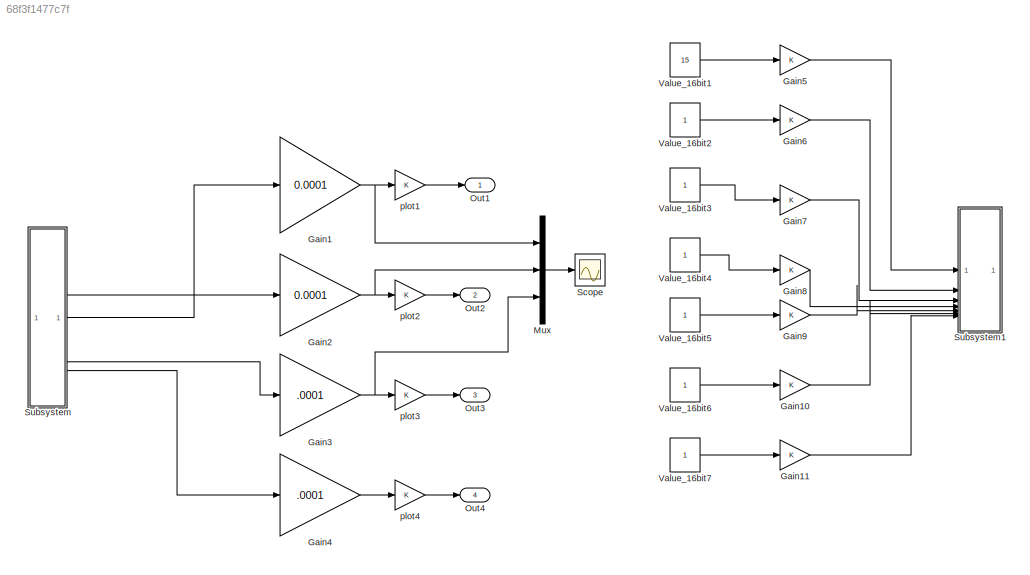
MODEL slx_68f3f1477c7f
KIND model
CONFIG AbsTol = auto
CONFIG EnableMultiTasking = on
CONFIG FixedStep = .005
CONFIG MaxStep = auto
CONFIG MinStep = auto
CONFIG RelTol = 1e-3
CONFIG SampleTimeConstraint = Unconstrained
CONFIG SolverName = ode3
CONFIG StartTime = 0.0
CONFIG StopTime = 50
BLOCK [Gain] Gain1
  Gain = 0.0001
  OutDataTypeStr = double
  ParamDataTypeStr = Inherit: Same as input
  SaturateOnIntegerOverflow = on
BLOCK [Gain] Gain10
BLOCK [Gain] Gain11
BLOCK [Gain] Gain2
  Gain = 0.0001
  OutDataTypeStr = double
  ParamDataTypeStr = Inherit: Same as input
  SaturateOnIntegerOverflow = on
BLOCK [Gain] Gain3
  Gain = .0001
  OutDataTypeStr = double
  ParamDataTypeStr = Inherit: Same as input
  SaturateOnIntegerOverflow = on
BLOCK [Gain] Gain4
  Gain = .0001
  OutDataTypeStr = double
  ParamDataTypeStr = Inherit: Same as input
  SaturateOnIntegerOverflow = on
BLOCK [Gain] Gain5
BLOCK [Gain] Gain6
BLOCK [Gain] Gain7
BLOCK [Gain] Gain8
BLOCK [Gain] Gain9
BLOCK [Mux] Mux
  DisplayOption = bar
  Inputs = 3
BLOCK [Outport] Out1
BLOCK [Outport] Out2
  Port = 2
BLOCK [Outport] Out3
  Port = 3
BLOCK [Outport] Out4
  Port = 4
BLOCK [Scope] Scope
  Floating = off
  NumInputPorts = 1
  ScopeSpecificationString = Simulink.scopes.TimeScopeBlockCfg('CurrentConfiguration', extmgr.ConfigurationSet(extmgr.Configuration('Core','General UI',true),extmgr.Configuration('Core','Source UI',true),extmgr.Configuration('Sources','WiredSimulink',true),extmgr.Configuration('Visuals','Time Domain',true,'SerializedDisplays',{struct('MinYLimReal','-0.54691','MaxYLimReal','0.71521','YLabelReal','','MinYLimMag','0.00000','MaxY...<+1341ch>
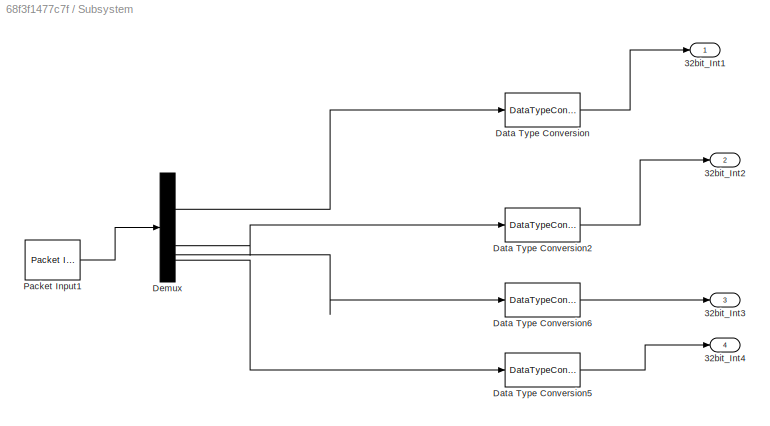
BLOCK [SubSystem] Subsystem
BLOCK [Outport] Subsystem/32bit_Int1
  VectorParamsAs1DForOutWhenUnconnected = off
BLOCK [Outport] Subsystem/32bit_Int2
  Port = 2
  VectorParamsAs1DForOutWhenUnconnected = off
BLOCK [Outport] Subsystem/32bit_Int3
  Port = 3
  VectorParamsAs1DForOutWhenUnconnected = off
BLOCK [Outport] Subsystem/32bit_Int4
  Port = 4
  VectorParamsAs1DForOutWhenUnconnected = off
BLOCK [DataTypeConversion] Subsystem/Data Type Conversion
  OutDataTypeStr = double
  RndMeth = Floor
  SaturateOnIntegerOverflow = off
BLOCK [DataTypeConversion] Subsystem/Data Type Conversion2
  OutDataTypeStr = double
  RndMeth = Floor
  SaturateOnIntegerOverflow = off
BLOCK [DataTypeConversion] Subsystem/Data Type Conversion5
  OutDataTypeStr = double
  RndMeth = Floor
  SaturateOnIntegerOverflow = off
BLOCK [DataTypeConversion] Subsystem/Data Type Conversion6
  OutDataTypeStr = double
  RndMeth = Floor
  SaturateOnIntegerOverflow = off
BLOCK [Demux] Subsystem/Demux
BLOCK [Reference] Subsystem/Packet Input1  REF=sldrtlib/Packet Input
  AttributesFormatString = Serial Port [1]
  SourceBlock = sldrtlib/Packet Input
  SourceType = Simulink Desktop Real-Time Packet Input
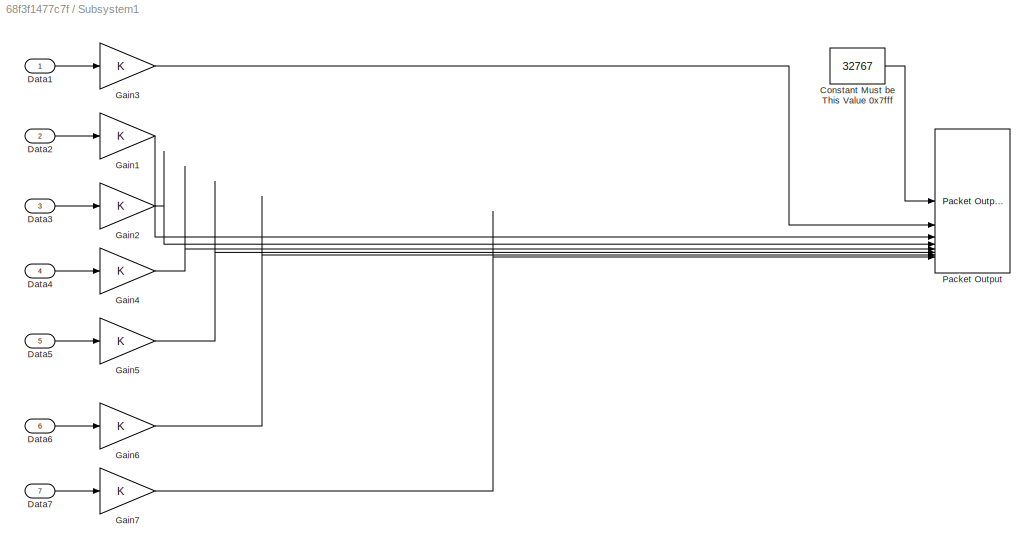
BLOCK [SubSystem] Subsystem1
BLOCK [Constant] Subsystem1/Constant Must be This Value 0x7fff
  OutDataTypeStr = int16
  Value = 32767
BLOCK [Inport] Subsystem1/Data1
BLOCK [Inport] Subsystem1/Data2
  Port = 2
BLOCK [Inport] Subsystem1/Data3
  Port = 3
BLOCK [Inport] Subsystem1/Data4
  Port = 4
BLOCK [Inport] Subsystem1/Data5
  Port = 5
BLOCK [Inport] Subsystem1/Data6 
  Port = 6
BLOCK [Inport] Subsystem1/Data7 
  Port = 7
BLOCK [Gain] Subsystem1/Gain1
  OutDataTypeStr = int16
BLOCK [Gain] Subsystem1/Gain2
  OutDataTypeStr = int16
BLOCK [Gain] Subsystem1/Gain3
  OutDataTypeStr = int16
BLOCK [Gain] Subsystem1/Gain4
  OutDataTypeStr = int16
BLOCK [Gain] Subsystem1/Gain5
  OutDataTypeStr = int16
BLOCK [Gain] Subsystem1/Gain6
  OutDataTypeStr = int16
BLOCK [Gain] Subsystem1/Gain7
  OutDataTypeStr = int16
BLOCK [Reference] Subsystem1/Packet Output  REF=sldrtlib/Packet Output
  AttributesFormatString = Serial Port [1]
  SourceBlock = sldrtlib/Packet Output
  SourceType = Simulink Desktop Real-Time Packet Output
BLOCK [Constant] Value_16bit1
  Value = 15
BLOCK [Constant] Value_16bit2
BLOCK [Constant] Value_16bit3
BLOCK [Constant] Value_16bit4
BLOCK [Constant] Value_16bit5 
BLOCK [Constant] Value_16bit6
BLOCK [Constant] Value_16bit7
BLOCK [Gain] plot1
BLOCK [Gain] plot2
BLOCK [Gain] plot3
BLOCK [Gain] plot4
LINE Gain10:1 -> Subsystem1:6
LINE Gain11:1 -> Subsystem1:7
NET Gain1:1 -> Mux:1, plot1:1
NET Gain2:1 -> Mux:2, plot2:1
NET Gain3:1 -> Mux:3, plot3:1
LINE Gain4:1 -> plot4:1
LINE Gain5:1 -> Subsystem1:1
LINE Gain6:1 -> Subsystem1:2
LINE Gain7:1 -> Subsystem1:3
LINE Gain8:1 -> Subsystem1:4
LINE Gain9:1 -> Subsystem1:5
LINE Mux:1 -> Scope:1
LINE Subsystem/Data Type Conversion2:1 -> Subsystem/32bit_Int2:1
LINE Subsystem/Data Type Conversion5:1 -> Subsystem/32bit_Int4:1
LINE Subsystem/Data Type Conversion6:1 -> Subsystem/32bit_Int3:1
LINE Subsystem/Data Type Conversion:1 -> Subsystem/32bit_Int1:1
LINE Subsystem/Demux:1 -> Subsystem/Data Type Conversion:1
LINE Subsystem/Demux:2 -> Subsystem/Data Type Conversion2:1
LINE Subsystem/Demux:3 -> Subsystem/Data Type Conversion6:1
LINE Subsystem/Demux:4 -> Subsystem/Data Type Conversion5:1
LINE Subsystem/Packet Input1:1 -> Subsystem/Demux:1
LINE Subsystem1/Constant Must be This Value 0x7fff:1 -> Subsystem1/Packet Output:1
LINE Subsystem1/Data1:1 -> Subsystem1/Gain3:1
LINE Subsystem1/Data2:1 -> Subsystem1/Gain1:1
LINE Subsystem1/Data3:1 -> Subsystem1/Gain2:1
LINE Subsystem1/Data4:1 -> Subsystem1/Gain4:1
LINE Subsystem1/Data5:1 -> Subsystem1/Gain5:1
LINE Subsystem1/Data6 :1 -> Subsystem1/Gain6:1
LINE Subsystem1/Data7 :1 -> Subsystem1/Gain7:1
LINE Subsystem1/Gain1:1 -> Subsystem1/Packet Output:3
LINE Subsystem1/Gain2:1 -> Subsystem1/Packet Output:4
LINE Subsystem1/Gain3:1 -> Subsystem1/Packet Output:2
LINE Subsystem1/Gain4:1 -> Subsystem1/Packet Output:5
LINE Subsystem1/Gain5:1 -> Subsystem1/Packet Output:6
LINE Subsystem1/Gain6:1 -> Subsystem1/Packet Output:7
LINE Subsystem1/Gain7:1 -> Subsystem1/Packet Output:8
LINE Subsystem:1 -> Gain1:1
LINE Subsystem:2 -> Gain2:1
LINE Subsystem:3 -> Gain3:1
LINE Subsystem:4 -> Gain4:1
LINE Value_16bit1:1 -> Gain5:1
LINE Value_16bit2:1 -> Gain6:1
LINE Value_16bit3:1 -> Gain7:1
LINE Value_16bit4:1 -> Gain8:1
LINE Value_16bit5 :1 -> Gain9:1
LINE Value_16bit6:1 -> Gain10:1
LINE Value_16bit7:1 -> Gain11:1
LINE plot1:1 -> Out1:1
LINE plot2:1 -> Out2:1
LINE plot3:1 -> Out3:1
LINE plot4:1 -> Out4:1
note: NET lines group one-source signal fan-out (src -> all destinations, sorted); 1:1 wires keep LINE
